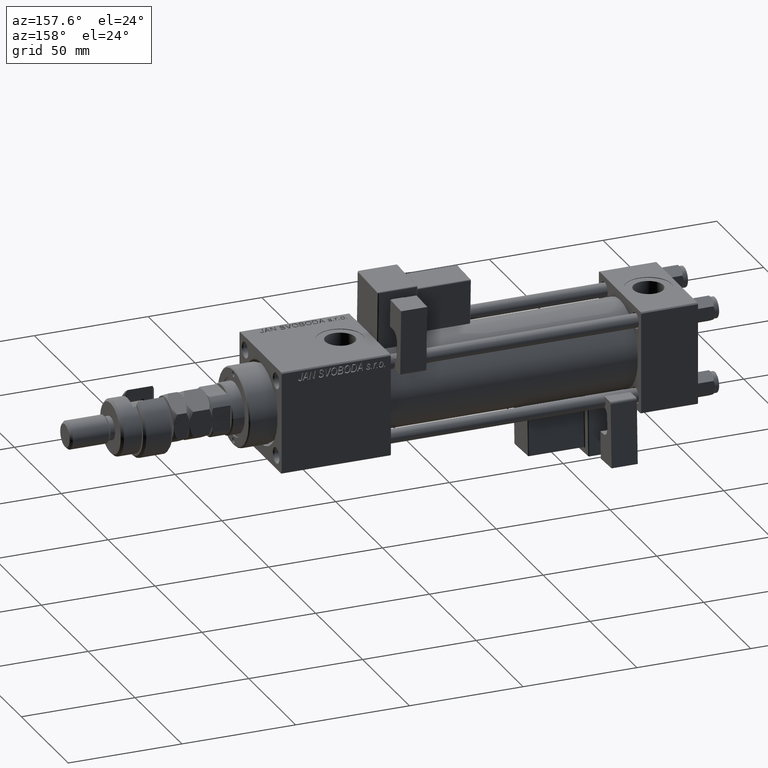
[diagram: clean part render]
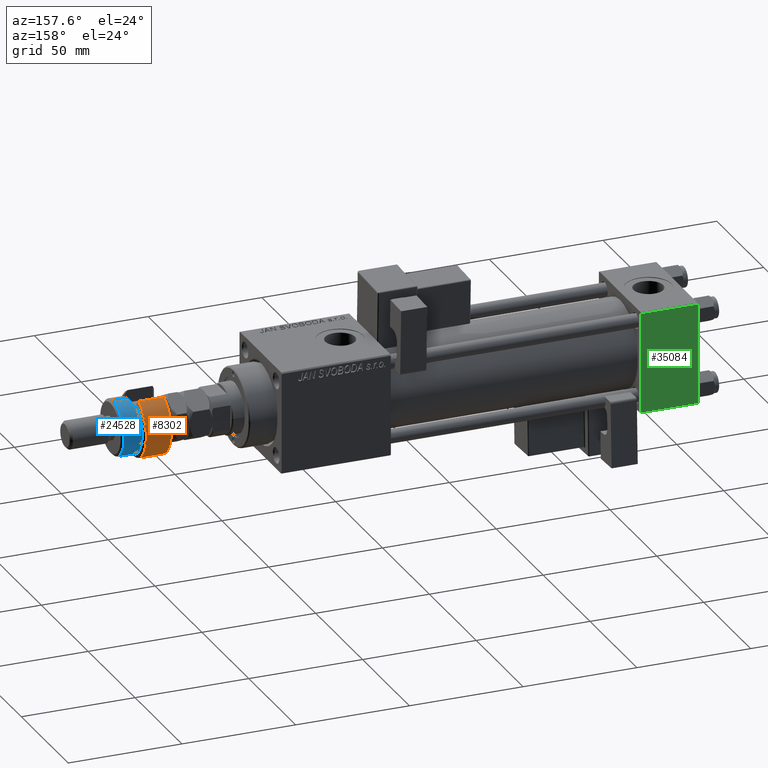
[diagram: same view with three faces highlighted in distinct colors, each labeled with its STEP entity id]
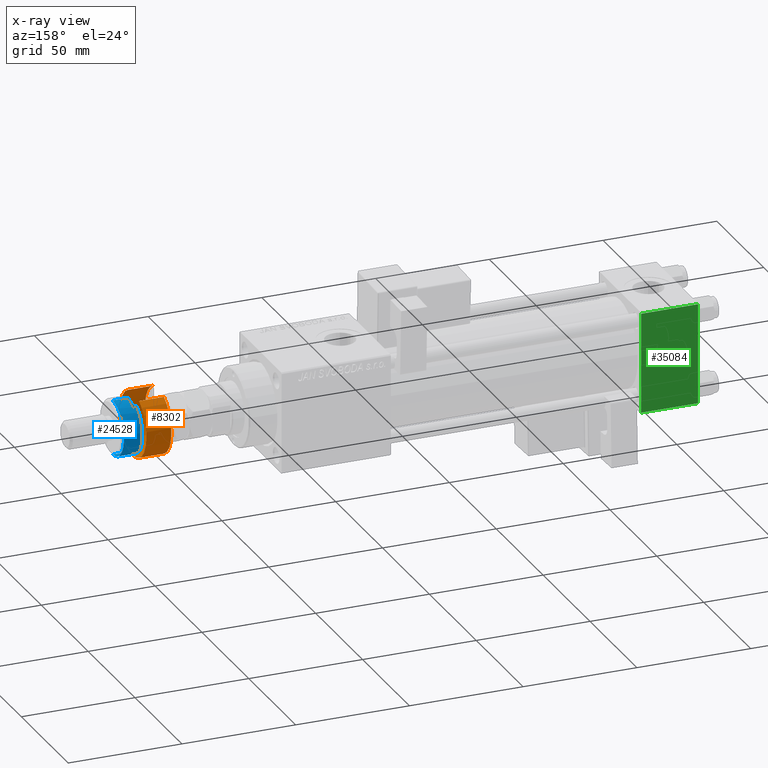
[diagram: x-ray of the same camera — body ghosted, the three highlighted faces saturated]
A machine part, auxiliary view with three faces highlighted in distinct colors.
The next image is the same camera in x-ray (body ghosted, the three faces saturated) — at least one of them is partly hidden behind the body in this view.
Their STEP definitions:

[orange] entity #8302 — the highlighted cylindrical surface (edge-blend (fillet) strip) has radius 14 mm, axis along (-1, -0, 0).
#60 = CARTESIAN_POINT ( 'NONE',  ( -12.64911064067351809, 6.000000000000000000, 14.50000000000000000 ) ) ;
#828 = CARTESIAN_POINT ( 'NONE',  ( -12.64911064067351809, -5.999999999999999112, 14.50000000000000000 ) ) ;
#2237 = EDGE_LOOP ( 'NONE', ( #33718, #35319, #23325, #45416, #51476 ) ) ;
#2250 = FACE_OUTER_BOUND ( 'NONE', #2237, .T. ) ;
#3219 = CARTESIAN_POINT ( 'NONE',  ( 14.00000000000000000, 0.000000000000000000, 1.000000000000018208 ) ) ;
#5736 = CARTESIAN_POINT ( 'NONE',  ( 0.000000000000000000, 0.000000000000000000, 1.000000000000018208 ) ) ;
#5776 = EDGE_CURVE ( 'NONE', #19279, #9046, #51027, .T. ) ;
#6165 = CYLINDRICAL_SURFACE ( 'NONE', #36785, 14.00000000000000000 ) ;
#8184 = LINE ( 'NONE', #60, #39544 ) ;
#8302 = ADVANCED_FACE ( 'NONE', ( #2250 ), #6165, .T. ) ;
#8449 = DIRECTION ( 'NONE',  ( -0.000000000000000000, -0.000000000000000000, -1.000000000000000000 ) ) ;
#9046 = VERTEX_POINT ( 'NONE', #22301 ) ;
#9284 = CARTESIAN_POINT ( 'NONE',  ( 0.000000000000000000, 0.000000000000000000, 1.000000000000018208 ) ) ;
#12623 = DIRECTION ( 'NONE',  ( -0.000000000000000000, -0.000000000000000000, -1.000000000000000000 ) ) ;
#17297 = EDGE_CURVE ( 'NONE', #50627, #19279, #26493, .T. ) ;
#19279 = VERTEX_POINT ( 'NONE', #33743 ) ;
#19700 = VECTOR ( 'NONE', #12623, 1000.000000000000000 ) ;
#20172 = CARTESIAN_POINT ( 'NONE',  ( 0.000000000000000000, 0.000000000000000000, 12.00000000000002842 ) ) ;
#20557 = AXIS2_PLACEMENT_3D ( 'NONE', #5736, #38816, #52826 ) ;
#22301 = CARTESIAN_POINT ( 'NONE',  ( -12.64911064067351809, -5.999999999999999112, 1.000000000000021760 ) ) ;
#23325 = ORIENTED_EDGE ( 'NONE', *, *, #5776, .T. ) ;
#24193 = EDGE_CURVE ( 'NONE', #46069, #37394, #44718, .T. ) ;
#26493 = CIRCLE ( 'NONE', #53360, 14.00000000000000000 ) ;
#31112 = CARTESIAN_POINT ( 'NONE',  ( 0.000000000000000000, 0.000000000000000000, 13.00000000000000000 ) ) ;
#33332 = DIRECTION ( 'NONE',  ( 0.000000000000000000, 0.000000000000000000, -1.000000000000000000 ) ) ;
#33718 = ORIENTED_EDGE ( 'NONE', *, *, #55440, .F. ) ;
#33743 = CARTESIAN_POINT ( 'NONE',  ( -12.64911064067351809, -5.999999999999999112, 12.00000000000002842 ) ) ;
#35319 = ORIENTED_EDGE ( 'NONE', *, *, #17297, .T. ) ;
#36785 = AXIS2_PLACEMENT_3D ( 'NONE', #31112, #44561, #52697 ) ;
#37394 = VERTEX_POINT ( 'NONE', #51903 ) ;
#37412 = CIRCLE ( 'NONE', #46311, 14.00000000000000000 ) ;
#38816 = DIRECTION ( 'NONE',  ( -0.000000000000000000, -0.000000000000000000, 1.000000000000000000 ) ) ;
#39052 = EDGE_CURVE ( 'NONE', #9046, #46069, #37412, .T. ) ;
#39188 = CARTESIAN_POINT ( 'NONE',  ( -12.64911064067351809, 6.000000000000000000, 12.00000000000002842 ) ) ;
#39544 = VECTOR ( 'NONE', #8449, 1000.000000000000000 ) ;
#42014 = DIRECTION ( 'NONE',  ( 1.000000000000000000, 0.000000000000000000, 0.000000000000000000 ) ) ;
#43215 = DIRECTION ( 'NONE',  ( -0.000000000000000000, -0.000000000000000000, 1.000000000000000000 ) ) ;
#44561 = DIRECTION ( 'NONE',  ( -0.000000000000000000, -0.000000000000000000, -1.000000000000000000 ) ) ;
#44718 = CIRCLE ( 'NONE', #20557, 14.00000000000000000 ) ;
#45416 = ORIENTED_EDGE ( 'NONE', *, *, #39052, .T. ) ;
#46069 = VERTEX_POINT ( 'NONE', #3219 ) ;
#46311 = AXIS2_PLACEMENT_3D ( 'NONE', #9284, #43215, #47419 ) ;
#47419 = DIRECTION ( 'NONE',  ( 1.000000000000000000, 0.000000000000000000, 0.000000000000000000 ) ) ;
#50627 = VERTEX_POINT ( 'NONE', #39188 ) ;
#51027 = LINE ( 'NONE', #828, #19700 ) ;
#51476 = ORIENTED_EDGE ( 'NONE', *, *, #24193, .T. ) ;
#51903 = CARTESIAN_POINT ( 'NONE',  ( -12.64911064067351809, 6.000000000000000000, 1.000000000000021760 ) ) ;
#52697 = DIRECTION ( 'NONE',  ( -1.000000000000000000, 0.000000000000000000, 0.000000000000000000 ) ) ;
#52826 = DIRECTION ( 'NONE',  ( 1.000000000000000000, 0.000000000000000000, 0.000000000000000000 ) ) ;
#53360 = AXIS2_PLACEMENT_3D ( 'NONE', #20172, #33332, #42014 ) ;
#55440 = EDGE_CURVE ( 'NONE', #50627, #37394, #8184, .T. ) ;

[blue] entity #24528 — the highlighted cylindrical surface (edge-blend (fillet) strip) has radius 12 mm, axis along (-1, -0, 0).
#378 = ORIENTED_EDGE ( 'NONE', *, *, #49203, .T. ) ;
#2295 = DIRECTION ( 'NONE',  ( -1.000000000000000000, 0.000000000000000000, 0.000000000000000000 ) ) ;
#2649 = CARTESIAN_POINT ( 'NONE',  ( 12.00000000000000178, 1.469576158976824144E-15, 20.99999999999998224 ) ) ;
#5015 = DIRECTION ( 'NONE',  ( 1.000000000000000000, 0.000000000000000000, 0.000000000000000000 ) ) ;
#5235 = LINE ( 'NONE', #39439, #47653 ) ;
#6528 = EDGE_CURVE ( 'NONE', #45461, #11953, #8983, .T. ) ;
#7540 = ORIENTED_EDGE ( 'NONE', *, *, #6528, .F. ) ;
#7932 = CARTESIAN_POINT ( 'NONE',  ( 0.000000000000000000, 0.000000000000000000, 20.99999999999998224 ) ) ;
#8611 = ORIENTED_EDGE ( 'NONE', *, *, #33108, .F. ) ;
#8983 = CIRCLE ( 'NONE', #47482, 12.00000000000000178 ) ;
#11448 = VERTEX_POINT ( 'NONE', #2649 ) ;
#11953 = VERTEX_POINT ( 'NONE', #31812 ) ;
#14643 = CARTESIAN_POINT ( 'NONE',  ( 0.000000000000000000, 0.000000000000000000, 14.50000000000000000 ) ) ;
#17392 = ORIENTED_EDGE ( 'NONE', *, *, #27293, .T. ) ;
#17705 = VECTOR ( 'NONE', #55435, 1000.000000000000000 ) ;
#17901 = AXIS2_PLACEMENT_3D ( 'NONE', #33356, #50459, #50726 ) ;
#20197 = FACE_OUTER_BOUND ( 'NONE', #24826, .T. ) ;
#21381 = DIRECTION ( 'NONE',  ( 0.000000000000000000, 0.000000000000000000, -1.000000000000000000 ) ) ;
#21649 = CARTESIAN_POINT ( 'NONE',  ( 12.00000000000000178, 1.469576158976824144E-15, 22.00000000000000000 ) ) ;
#22401 = DIRECTION ( 'NONE',  ( 0.000000000000000000, 0.000000000000000000, 1.000000000000000000 ) ) ;
#24528 = ADVANCED_FACE ( 'NONE', ( #20197 ), #46233, .T. ) ;
#24826 = EDGE_LOOP ( 'NONE', ( #36214, #17392, #378, #32720, #7540, #8611 ) ) ;
#25710 = DIRECTION ( 'NONE',  ( -0.000000000000000000, -0.000000000000000000, -1.000000000000000000 ) ) ;
#25966 = CARTESIAN_POINT ( 'NONE',  ( 12.00000000000000178, 1.469576158976824144E-15, 13.00000000000000000 ) ) ;
#27293 = EDGE_CURVE ( 'NONE', #11448, #35580, #38740, .T. ) ;
#27825 = AXIS2_PLACEMENT_3D ( 'NONE', #43417, #22401, #5015 ) ;
#28820 = LINE ( 'NONE', #46191, #17705 ) ;
#30046 = DIRECTION ( 'NONE',  ( -0.000000000000000000, -0.000000000000000000, -1.000000000000000000 ) ) ;
#30409 = VECTOR ( 'NONE', #30046, 1000.000000000000000 ) ;
#31378 = CIRCLE ( 'NONE', #27825, 12.00000000000000178 ) ;
#31812 = CARTESIAN_POINT ( 'NONE',  ( -10.39230484541326582, 5.999999999999998224, 14.50000000000000000 ) ) ;
#32720 = ORIENTED_EDGE ( 'NONE', *, *, #39633, .T. ) ;
#33108 = EDGE_CURVE ( 'NONE', #53734, #45461, #5235, .T. ) ;
#33356 = CARTESIAN_POINT ( 'NONE',  ( 0.000000000000000000, 0.000000000000000000, 22.00000000000000000 ) ) ;
#34280 = DIRECTION ( 'NONE',  ( 1.000000000000000000, 0.000000000000000000, 0.000000000000000000 ) ) ;
#35580 = VERTEX_POINT ( 'NONE', #25966 ) ;
#36143 = CARTESIAN_POINT ( 'NONE',  ( -10.39230484541326760, 6.000000000000000000, 13.00000000000000000 ) ) ;
#36214 = ORIENTED_EDGE ( 'NONE', *, *, #49698, .T. ) ;
#38740 = LINE ( 'NONE', #21649, #30409 ) ;
#39439 = CARTESIAN_POINT ( 'NONE',  ( -12.00000000000000178, 0.000000000000000000, 22.00000000000000000 ) ) ;
#39633 = EDGE_CURVE ( 'NONE', #49293, #11953, #28820, .T. ) ;
#40361 = AXIS2_PLACEMENT_3D ( 'NONE', #7932, #21381, #34280 ) ;
#40709 = CARTESIAN_POINT ( 'NONE',  ( -12.00000000000000178, 0.000000000000000000, 14.50000000000000000 ) ) ;
#43417 = CARTESIAN_POINT ( 'NONE',  ( 0.000000000000000000, 0.000000000000000000, 13.00000000000000000 ) ) ;
#45461 = VERTEX_POINT ( 'NONE', #40709 ) ;
#46191 = CARTESIAN_POINT ( 'NONE',  ( -10.39230484541326760, 6.000000000000000000, 22.00000000000000000 ) ) ;
#46233 = CYLINDRICAL_SURFACE ( 'NONE', #17901, 12.00000000000000178 ) ;
#47482 = AXIS2_PLACEMENT_3D ( 'NONE', #14643, #49097, #2295 ) ;
#47653 = VECTOR ( 'NONE', #25710, 1000.000000000000000 ) ;
#49097 = DIRECTION ( 'NONE',  ( 0.000000000000000000, 0.000000000000000000, -1.000000000000000000 ) ) ;
#49203 = EDGE_CURVE ( 'NONE', #35580, #49293, #31378, .T. ) ;
#49293 = VERTEX_POINT ( 'NONE', #36143 ) ;
#49698 = EDGE_CURVE ( 'NONE', #53734, #11448, #53773, .T. ) ;
#50459 = DIRECTION ( 'NONE',  ( -0.000000000000000000, -0.000000000000000000, -1.000000000000000000 ) ) ;
#50726 = DIRECTION ( 'NONE',  ( -1.000000000000000000, 0.000000000000000000, 0.000000000000000000 ) ) ;
#53734 = VERTEX_POINT ( 'NONE', #54920 ) ;
#53773 = CIRCLE ( 'NONE', #40361, 12.00000000000000178 ) ;
#54920 = CARTESIAN_POINT ( 'NONE',  ( -12.00000000000000178, 0.000000000000000000, 20.99999999999998224 ) ) ;
#55435 = DIRECTION ( 'NONE',  ( 0.000000000000000000, 0.000000000000000000, 1.000000000000000000 ) ) ;

[green] entity #35084 — the highlighted planar face has unit normal (0, 1, 0).
#449 = DIRECTION ( 'NONE',  ( -1.000000000000000000, 0.000000000000000000, 0.000000000000000000 ) ) ;
#717 = VERTEX_POINT ( 'NONE', #49961 ) ;
#7209 = LINE ( 'NONE', #19569, #28742 ) ;
#10091 = EDGE_CURVE ( 'NONE', #47258, #717, #48302, .T. ) ;
#13155 = ORIENTED_EDGE ( 'NONE', *, *, #45852, .T. ) ;
#13872 = CARTESIAN_POINT ( 'NONE',  ( 25.00000000000000000, 22.50000000000000000, -21.99999999999996803 ) ) ;
#14114 = DIRECTION ( 'NONE',  ( -0.000000000000000000, 1.000000000000000000, 0.000000000000000000 ) ) ;
#18314 = FACE_OUTER_BOUND ( 'NONE', #25084, .T. ) ;
#19569 = CARTESIAN_POINT ( 'NONE',  ( 0.000000000000000000, 22.50000000000000000, 22.50000000000000355 ) ) ;
#24105 = VERTEX_POINT ( 'NONE', #13872 ) ;
#25084 = EDGE_LOOP ( 'NONE', ( #50236, #13155, #53230, #36638 ) ) ;
#26462 = CARTESIAN_POINT ( 'NONE',  ( 0.000000000000000000, 22.50000000000000000, 21.99999999999999645 ) ) ;
#26872 = VERTEX_POINT ( 'NONE', #37799 ) ;
#26969 = LINE ( 'NONE', #52201, #46505 ) ;
#27411 = EDGE_CURVE ( 'NONE', #717, #24105, #26969, .T. ) ;
#28742 = VECTOR ( 'NONE', #32178, 1000.000000000000000 ) ;
#31195 = DIRECTION ( 'NONE',  ( 0.000000000000000000, -0.000000000000000000, 1.000000000000000000 ) ) ;
#31483 = CARTESIAN_POINT ( 'NONE',  ( 25.00000000000000000, 22.50000000000000000, 22.50000000000000355 ) ) ;
#31488 = CARTESIAN_POINT ( 'NONE',  ( 25.00000000000000000, 22.50000000000000000, 21.99999999999999645 ) ) ;
#32178 = DIRECTION ( 'NONE',  ( 0.000000000000000000, 0.000000000000000000, -1.000000000000000000 ) ) ;
#34914 = LINE ( 'NONE', #55120, #52753 ) ;
#35084 = ADVANCED_FACE ( 'NONE', ( #18314 ), #53622, .T. ) ;
#35194 = VECTOR ( 'NONE', #49138, 1000.000000000000000 ) ;
#36638 = ORIENTED_EDGE ( 'NONE', *, *, #10091, .T. ) ;
#37799 = CARTESIAN_POINT ( 'NONE',  ( 0.000000000000000000, 22.50000000000000000, -21.99999999999996803 ) ) ;
#39797 = AXIS2_PLACEMENT_3D ( 'NONE', #31483, #14114, #31195 ) ;
#45852 = EDGE_CURVE ( 'NONE', #24105, #26872, #34914, .T. ) ;
#46505 = VECTOR ( 'NONE', #47441, 1000.000000000000000 ) ;
#47258 = VERTEX_POINT ( 'NONE', #26462 ) ;
#47441 = DIRECTION ( 'NONE',  ( 0.000000000000000000, 0.000000000000000000, -1.000000000000000000 ) ) ;
#48302 = LINE ( 'NONE', #31488, #35194 ) ;
#49138 = DIRECTION ( 'NONE',  ( 1.000000000000000000, 0.000000000000000000, 0.000000000000000000 ) ) ;
#49961 = CARTESIAN_POINT ( 'NONE',  ( 25.00000000000000000, 22.50000000000000000, 21.99999999999999645 ) ) ;
#50236 = ORIENTED_EDGE ( 'NONE', *, *, #27411, .T. ) ;
#50668 = EDGE_CURVE ( 'NONE', #47258, #26872, #7209, .T. ) ;
#52201 = CARTESIAN_POINT ( 'NONE',  ( 25.00000000000000000, 22.50000000000000000, 22.50000000000000355 ) ) ;
#52753 = VECTOR ( 'NONE', #449, 1000.000000000000000 ) ;
#53230 = ORIENTED_EDGE ( 'NONE', *, *, #50668, .F. ) ;
#53622 = PLANE ( 'NONE',  #39797 ) ;
#55120 = CARTESIAN_POINT ( 'NONE',  ( 25.00000000000000000, 22.50000000000000000, -21.99999999999998224 ) ) ;